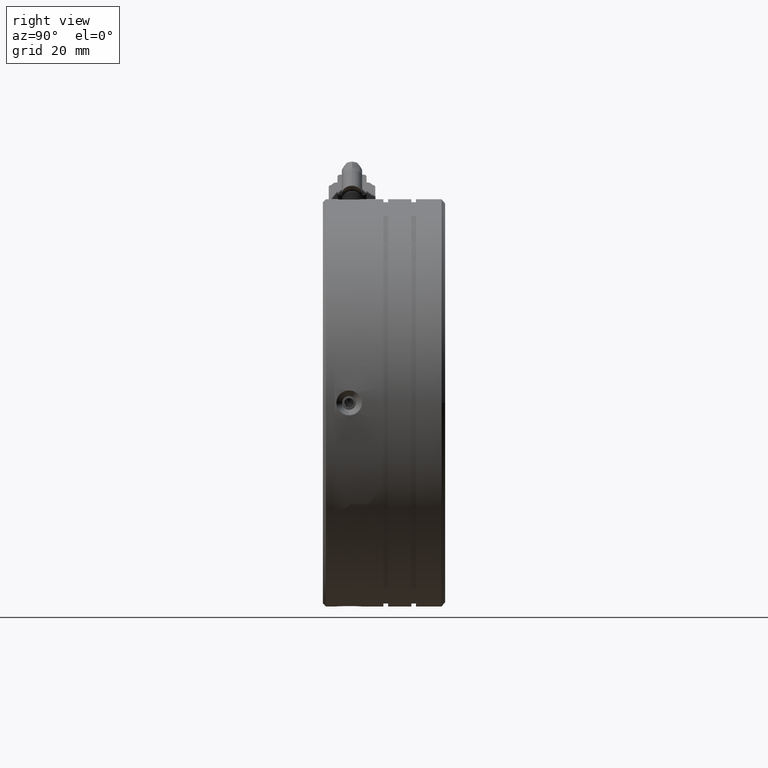
[diagram: clean part render]
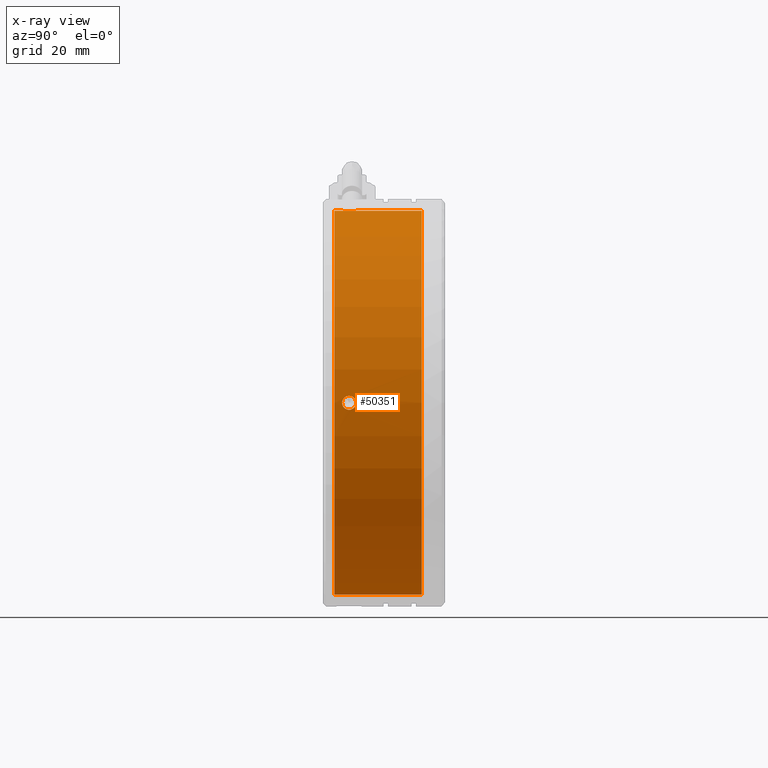
[diagram: x-ray — body ghosted, one internal face saturated and labeled with its STEP entity id]
A machine part, right view, then the same camera in x-ray: the body is ghosted and one INTERNAL B-rep face — a face not visible from any outside direction — is saturated and labeled: STEP entity #50351.
In plain terms, the highlighted cylindrical surface (partial cylindrical patch) has radius 33 mm, axis along (-0, -1, -0).
Its self-contained STEP definition (entity closure, byte-faithful):
#278 = CARTESIAN_POINT ( 'NONE',  ( -1.756641551290327500, 1.544819374656230400, -32.98623554602826900 ) ) ;
#461 = CARTESIAN_POINT ( 'NONE',  ( -1.756641551290326800, 0.06972329556116278700, 32.98623554602826900 ) ) ;
#1137 = CARTESIAN_POINT ( 'NONE',  ( -2.716071020391490200, -0.3927286648912906600, -33.00000000000003600 ) ) ;
#1878 = CARTESIAN_POINT ( 'NONE',  ( 30.27872891275779600, -0.2417390261739501000, 0.6035639478341301400 ) ) ;
#2171 = DIRECTION ( 'NONE',  ( -0.0000000000000000000, -1.000000000000000000, -0.0000000000000000000 ) ) ;
#3342 = CARTESIAN_POINT ( 'NONE',  ( 30.27871735660706800, 1.855908134164973500, 0.6039761071247099500 ) ) ;
#3970 = AXIS2_PLACEMENT_3D ( 'NONE', #52717, #12626, #59439 ) ;
#4981 = CARTESIAN_POINT ( 'NONE',  ( -2.716071020391490200, -1.692728664891304500, -1.131636017531745300E-015 ) ) ;
#6580 = CARTESIAN_POINT ( 'NONE',  ( 30.26210358039565700, 0.8072713351086960900, -1.199999999999881200 ) ) ;
#6642 = VERTEX_POINT ( 'NONE', #54333 ) ;
#7003 = CARTESIAN_POINT ( 'NONE',  ( -2.111577504616403400, 1.855598883251043100, -32.99477845521643400 ) ) ;
#7197 = CARTESIAN_POINT ( 'NONE',  ( -2.111577504616401100, -0.2410562130336494100, 32.99477845521643400 ) ) ;
#8150 = VECTOR ( 'NONE', #2171, 1000.000000000000000 ) ;
#8336 = CARTESIAN_POINT ( 'NONE',  ( -2.716071020391486200, -13.32601881678534500, 33.00000000000003600 ) ) ;
#8619 = CARTESIAN_POINT ( 'NONE',  ( 30.27015327894250500, 0.07004019868969724200, 0.9599873585862803700 ) ) ;
#9026 = CYLINDRICAL_SURFACE ( 'NONE', #71809, 33.00000000000003600 ) ;
#10070 = CARTESIAN_POINT ( 'NONE',  ( 30.28392509849338400, 2.007164604417318400, 0.1573320265077511900 ) ) ;
#10475 = CARTESIAN_POINT ( 'NONE',  ( -2.557591869066220300, 2.007271335108683300, 33.00000000000003600 ) ) ;
#11714 = DIRECTION ( 'NONE',  ( 0.0000000000000000000, 0.0000000000000000000, -1.000000000000000000 ) ) ;
#12626 = DIRECTION ( 'NONE',  ( -0.0000000000000000000, -1.000000000000000000, -0.0000000000000000000 ) ) ;
#13739 = CARTESIAN_POINT ( 'NONE',  ( -2.557592034282572000, 2.007271335108683300, -33.00000000000003600 ) ) ;
#13913 = CARTESIAN_POINT ( 'NONE',  ( -2.557592034282567100, -0.3927286648912909900, 33.00000000000003600 ) ) ;
#14015 = DIRECTION ( 'NONE',  ( 0.0000000000000000000, 0.0000000000000000000, -1.000000000000000000 ) ) ;
#14620 = CIRCLE ( 'NONE', #3970, 33.00000000000003600 ) ;
#15048 = CARTESIAN_POINT ( 'NONE',  ( 30.26327966126859100, 0.4931344724992205400, -1.168785520655095700 ) ) ;
#15347 = CARTESIAN_POINT ( 'NONE',  ( 30.26328206748696200, 0.4928482414054432000, 1.168722034054881400 ) ) ;
#16152 = EDGE_CURVE ( 'NONE', #23322, #78858, #75048, .T. ) ;
#16843 = CARTESIAN_POINT ( 'NONE',  ( 30.28276453478511600, 1.976351361077079500, -0.3129921246374106600 ) ) ;
#17224 = CARTESIAN_POINT ( 'NONE',  ( -2.716071020391490200, -0.3927286648912906600, -33.00000000000003600 ) ) ;
#17271 = CARTESIAN_POINT ( 'NONE',  ( -2.111579069174067700, 1.855750477904867200, 32.99478280426479400 ) ) ;
#18438 = CIRCLE ( 'NONE', #23336, 33.00000000000003600 ) ;
#20422 = CARTESIAN_POINT ( 'NONE',  ( -1.516071020391503300, 0.6487921824051992000, 32.97817460078713500 ) ) ;
#21759 = B_SPLINE_CURVE_WITH_KNOTS ( 'NONE', 3,
 ( #26943, #66990, #80574, #40392, #278, #47089, #7003, #53858, #13739, #60579 ),
 .UNSPECIFIED., .F., .F.,
 ( 4, 2, 2, 2, 4 ),
 ( 0.001874745254870686800, 0.002343432058372861100, 0.002812118861875035500, 0.003280805665377210300, 0.003749492468879384600 ),
 .UNSPECIFIED. ) ;
#21803 = CARTESIAN_POINT ( 'NONE',  ( 30.27017137514495800, 0.06941566001254349800, -0.9592045269286991700 ) ) ;
#22100 = CARTESIAN_POINT ( 'NONE',  ( 30.26210358039565000, 0.8072713351086959800, 1.200000000000092300 ) ) ;
#23239 = CARTESIAN_POINT ( 'NONE',  ( -2.716071020391490200, 2.007271335108682800, -33.00000000000003600 ) ) ;
#23302 = CARTESIAN_POINT ( 'NONE',  ( 30.26327966126859100, 1.121408197718174900, 1.168785520655304800 ) ) ;
#23322 = VERTEX_POINT ( 'NONE', #1137 ) ;
#23336 = AXIS2_PLACEMENT_3D ( 'NONE', #4981, #51839, #11714 ) ;
#23586 = CARTESIAN_POINT ( 'NONE',  ( 30.27591459152081700, 1.768328481776676000, -0.7358360129737872000 ) ) ;
#23945 = CARTESIAN_POINT ( 'NONE',  ( -2.111579069173807400, -0.2412078076873198400, -32.99478280426479400 ) ) ;
#23990 = CARTESIAN_POINT ( 'NONE',  ( -1.757166126515263800, 1.545501260155894400, 32.98625106334230100 ) ) ;
#24142 = EDGE_LOOP ( 'NONE', ( #74201, #75839 ) ) ;
#24857 = VERTEX_POINT ( 'NONE', #27835 ) ;
#24981 = VECTOR ( 'NONE', #55151, 1000.000000000000000 ) ;
#25963 = LINE ( 'NONE', #28547, #8150 ) ;
#26943 = CARTESIAN_POINT ( 'NONE',  ( -1.516071020391503500, 0.8072713351086959800, -32.97817460078714900 ) ) ;
#27222 = CARTESIAN_POINT ( 'NONE',  ( -2.716071020391490200, -13.32601881678534500, -1.131636017531745300E-015 ) ) ;
#27835 = CARTESIAN_POINT ( 'NONE',  ( -1.516071020391503500, 0.8072713351086959800, 32.97817460078714900 ) ) ;
#28251 = CARTESIAN_POINT ( 'NONE',  ( 30.26210358039567400, 0.6487165785571291600, -1.199999999999799700 ) ) ;
#28541 = CARTESIAN_POINT ( 'NONE',  ( 30.27871735660705700, -0.2413654639475856500, -0.6039761071244909000 ) ) ;
#28547 = CARTESIAN_POINT ( 'NONE',  ( -2.716071020391486200, -13.32601881678534500, 33.00000000000003600 ) ) ;
#30105 = VERTEX_POINT ( 'NONE', #23239 ) ;
#30267 = CARTESIAN_POINT ( 'NONE',  ( 30.26733570743430200, 1.412458215402521800, -1.048103961760978000 ) ) ;
#30619 = CARTESIAN_POINT ( 'NONE',  ( -1.757166126515150800, 0.06904141006165227800, -32.98625106334230100 ) ) ;
#30664 = CARTESIAN_POINT ( 'NONE',  ( -1.547920464128700100, 1.123225972586245000, 32.97937260952999600 ) ) ;
#31088 = CARTESIAN_POINT ( 'NONE',  ( -2.716071020391490200, -13.32601881678534500, -33.00000000000003600 ) ) ;
#31329 = EDGE_CURVE ( 'NONE', #78858, #30105, #21759, .T. ) ;
#33413 = EDGE_CURVE ( 'NONE', #63934, #58401, #34047, .T. ) ;
#34047 = B_SPLINE_CURVE_WITH_KNOTS ( 'NONE', 3,
 ( #76875, #70073, #23302, #36718, #83604, #43433, #3342, #50163, #10070, #56887, #16843, #63611, #23586, #70361, #30267, #77167, #37008, #83887 ),
 .UNSPECIFIED., .F., .F.,
 ( 4, 2, 2, 2, 2, 2, 2, 2, 4 ),
 ( 0.0000000000000000000, 0.0004689099025577869600, 0.0009378198051155739300, 0.001406729707673361100, 0.001875639610231148300, 0.002344549512788935900, 0.002813459415346723500, 0.003282369317904511600, 0.003751279220462299200 ),
 .UNSPECIFIED. ) ;
#34257 = VERTEX_POINT ( 'NONE', #72264 ) ;
#35278 = CARTESIAN_POINT ( 'NONE',  ( 30.28392509849339800, -0.3926219341999274100, -0.1573320265075288700 ) ) ;
#35986 = EDGE_CURVE ( 'NONE', #75448, #80652, #42773, .T. ) ;
#36718 = CARTESIAN_POINT ( 'NONE',  ( 30.26732810195379700, 1.412026036177376900, 1.048338358202600500 ) ) ;
#37008 = CARTESIAN_POINT ( 'NONE',  ( 30.26210358039565300, 0.9658260328664218800, -1.199999999999962000 ) ) ;
#37364 = CARTESIAN_POINT ( 'NONE',  ( -1.547920464128685200, 0.4913166976312227700, -32.97937260952999600 ) ) ;
#37406 = CARTESIAN_POINT ( 'NONE',  ( -1.516071020391503500, 0.8072713351086959800, 32.97817460078714900 ) ) ;
#38443 = B_SPLINE_CURVE_WITH_KNOTS ( 'NONE', 3,
 ( #41687, #28251, #15048, #61889, #21803, #68572, #28541, #75388, #35278, #82149, #41980, #1878, #48683, #8619, #55422, #15347, #62182, #22100 ),
 .UNSPECIFIED., .F., .F.,
 ( 4, 2, 2, 2, 2, 2, 2, 2, 4 ),
 ( 0.003751279220462299200, 0.004220189296893438700, 0.004689099373324577400, 0.005158009449755716900, 0.005626919526186855600, 0.006095829602617994200, 0.006564739679049134600, 0.007033649755480273300, 0.007502559831911412800 ),
 .UNSPECIFIED. ) ;
#38654 = CARTESIAN_POINT ( 'NONE',  ( -2.716071020391486200, 13.30727133510869800, 33.00000000000003600 ) ) ;
#40197 = EDGE_CURVE ( 'NONE', #58401, #63934, #38443, .T. ) ;
#40392 = CARTESIAN_POINT ( 'NONE',  ( -1.667591864840333200, 1.411763260888341900, -32.98339454709515900 ) ) ;
#40585 = CARTESIAN_POINT ( 'NONE',  ( -1.667591864840332700, 0.2027794093290507800, 32.98339454709515900 ) ) ;
#41687 = CARTESIAN_POINT ( 'NONE',  ( 30.26210358039565700, 0.8072713351086960900, -1.199999999999881200 ) ) ;
#41980 = CARTESIAN_POINT ( 'NONE',  ( 30.28276453478510900, -0.3618086908596832000, 0.3129921246376338700 ) ) ;
#42044 = ORIENTED_EDGE ( 'NONE', *, *, #35986, .F. ) ;
#42773 = LINE ( 'NONE', #8336, #24981 ) ;
#42871 = CARTESIAN_POINT ( 'NONE',  ( -2.716071020391490200, -13.32601881678534500, -33.00000000000003600 ) ) ;
#43433 = CARTESIAN_POINT ( 'NONE',  ( 30.27586556915116500, 1.766502041763538400, 0.7378216404815718400 ) ) ;
#43606 = VECTOR ( 'NONE', #83020, 1000.000000000000000 ) ;
#44016 = EDGE_LOOP ( 'NONE', ( #52716, #65169, #65672, #74273, #72212, #80606, #61849, #42044, #83769, #73617 ) ) ;
#44073 = CARTESIAN_POINT ( 'NONE',  ( -1.516071020391503500, 0.8072713351086959800, -32.97817460078714900 ) ) ;
#45304 = EDGE_CURVE ( 'NONE', #50813, #59045, #25963, .T. ) ;
#45751 = EDGE_CURVE ( 'NONE', #80652, #6642, #18438, .T. ) ;
#46944 = CARTESIAN_POINT ( 'NONE',  ( -2.716071020391486200, -0.3927286648912906600, 33.00000000000003600 ) ) ;
#47089 = CARTESIAN_POINT ( 'NONE',  ( -1.977841059906341800, 1.766176201225374300, -32.99192714785967700 ) ) ;
#47277 = CARTESIAN_POINT ( 'NONE',  ( -1.977841059906339600, -0.1516335310079813800, 32.99192714785967700 ) ) ;
#48005 = EDGE_CURVE ( 'NONE', #34257, #30105, #66742, .T. ) ;
#48683 = CARTESIAN_POINT ( 'NONE',  ( 30.27591459152080600, -0.1537858115592753700, 0.7358360129740064700 ) ) ;
#50163 = CARTESIAN_POINT ( 'NONE',  ( 30.28273918997904300, 1.975626757688306900, 0.3152330579765894600 ) ) ;
#50351 = ADVANCED_FACE ( 'NONE', ( #50895, #68690 ), #9026, .F. ) ;
#50584 = CARTESIAN_POINT ( 'NONE',  ( -2.716071020391486200, 2.007271335108682800, 33.00000000000003600 ) ) ;
#50813 = VERTEX_POINT ( 'NONE', #38654 ) ;
#50895 = FACE_OUTER_BOUND ( 'NONE', #44016, .T. ) ;
#51839 = DIRECTION ( 'NONE',  ( 0.0000000000000000000, 1.000000000000000000, 0.0000000000000000000 ) ) ;
#52716 = ORIENTED_EDGE ( 'NONE', *, *, #45304, .F. ) ;
#52717 = CARTESIAN_POINT ( 'NONE',  ( -2.716071020391490200, 13.30727133510869800, -1.131636017531745300E-015 ) ) ;
#53858 = CARTESIAN_POINT ( 'NONE',  ( -2.400116378680400100, 1.975421891839071600, -32.99880286288897900 ) ) ;
#54036 = CARTESIAN_POINT ( 'NONE',  ( -2.400116378680397000, -0.3608792216216789000, 32.99880286288897900 ) ) ;
#54091 = VECTOR ( 'NONE', #78591, 1000.000000000000000 ) ;
#54333 = CARTESIAN_POINT ( 'NONE',  ( -2.716071020391490200, -1.692728664891304500, -33.00000000000003600 ) ) ;
#55115 = LINE ( 'NONE', #42871, #43606 ) ;
#55151 = DIRECTION ( 'NONE',  ( -0.0000000000000000000, -1.000000000000000000, -0.0000000000000000000 ) ) ;
#55422 = CARTESIAN_POINT ( 'NONE',  ( 30.26733570743430600, 0.2020844548148637000, 1.048103961761187100 ) ) ;
#56887 = CARTESIAN_POINT ( 'NONE',  ( 30.28393284053778000, 2.007377510687136100, -0.1556996841216925800 ) ) ;
#57248 = CARTESIAN_POINT ( 'NONE',  ( -2.557591869066032400, -0.3927286648912612400, -33.00000000000002800 ) ) ;
#57299 = CARTESIAN_POINT ( 'NONE',  ( -2.402087126540426900, 1.976088320939825000, 32.99882599326977600 ) ) ;
#58401 = VERTEX_POINT ( 'NONE', #6580 ) ;
#59045 = VERTEX_POINT ( 'NONE', #82358 ) ;
#59439 = DIRECTION ( 'NONE',  ( 0.0000000000000000000, 0.0000000000000000000, -1.000000000000000000 ) ) ;
#60470 = CARTESIAN_POINT ( 'NONE',  ( -1.516071020391503500, 0.8072713351086959800, 32.97817460078714900 ) ) ;
#60579 = CARTESIAN_POINT ( 'NONE',  ( -2.716071020391490200, 2.007271335108682800, -33.00000000000003600 ) ) ;
#60761 = CARTESIAN_POINT ( 'NONE',  ( -2.716071020391486200, -0.3927286648912906600, 33.00000000000003600 ) ) ;
#60862 = CARTESIAN_POINT ( 'NONE',  ( 30.26210358039565000, 0.8072713351086959800, 1.200000000000092300 ) ) ;
#61322 = EDGE_CURVE ( 'NONE', #24857, #75448, #68941, .T. ) ;
#61849 = ORIENTED_EDGE ( 'NONE', *, *, #45751, .F. ) ;
#61889 = CARTESIAN_POINT ( 'NONE',  ( 30.26732810195380100, 0.2025166340400023600, -1.048338358202383100 ) ) ;
#62182 = CARTESIAN_POINT ( 'NONE',  ( 30.26210358039565000, 0.6487165197651136900, 1.200000000000092300 ) ) ;
#62497 = CARTESIAN_POINT ( 'NONE',  ( -2.716071020391486200, -1.692728664891304500, 33.00000000000003600 ) ) ;
#63611 = CARTESIAN_POINT ( 'NONE',  ( 30.27872891275779200, 1.856281696391340400, -0.6035639478339234200 ) ) ;
#63934 = VERTEX_POINT ( 'NONE', #60862 ) ;
#63969 = CARTESIAN_POINT ( 'NONE',  ( -2.402087126540059600, -0.3615456507223291400, -32.99882599326976900 ) ) ;
#64019 = CARTESIAN_POINT ( 'NONE',  ( -1.978522949521982300, 1.766700780608278600, 32.99194266260335000 ) ) ;
#65169 = ORIENTED_EDGE ( 'NONE', *, *, #75932, .F. ) ;
#65672 = ORIENTED_EDGE ( 'NONE', *, *, #48005, .T. ) ;
#65719 = EDGE_CURVE ( 'NONE', #59045, #24857, #74008, .T. ) ;
#66742 = LINE ( 'NONE', #31088, #54091 ) ;
#66990 = CARTESIAN_POINT ( 'NONE',  ( -1.516071020391503100, 0.9657504878121914200, -32.97817460078713500 ) ) ;
#67263 = DIRECTION ( 'NONE',  ( -0.0000000000000000000, -1.000000000000000000, -0.0000000000000000000 ) ) ;
#68572 = CARTESIAN_POINT ( 'NONE',  ( 30.27586556915116800, -0.1519593715461540200, -0.7378216404813510200 ) ) ;
#68690 = FACE_BOUND ( 'NONE', #24142, .T. ) ;
#68941 = B_SPLINE_CURVE_WITH_KNOTS ( 'NONE', 3,
 ( #60470, #20422, #80755, #40585, #461, #47277, #7197, #54036, #13913, #60761 ),
 .UNSPECIFIED., .F., .F.,
 ( 4, 2, 2, 2, 4 ),
 ( 0.001874745254870911800, 0.002343432058373084500, 0.002812118861875257100, 0.003280805665377430200, 0.003749492468879603200 ),
 .UNSPECIFIED. ) ;
#70073 = CARTESIAN_POINT ( 'NONE',  ( 30.26210358039565700, 0.9658260916596472800, 1.200000000000092500 ) ) ;
#70361 = CARTESIAN_POINT ( 'NONE',  ( 30.27015327894251600, 1.544502471527683800, -0.9599873585860805300 ) ) ;
#70733 = CARTESIAN_POINT ( 'NONE',  ( -1.978522949521775300, -0.1521581103907211400, -32.99194266260336400 ) ) ;
#70782 = CARTESIAN_POINT ( 'NONE',  ( -1.667743459670267400, 1.411764825952828600, 32.98339889650164700 ) ) ;
#71809 = AXIS2_PLACEMENT_3D ( 'NONE', #27222, #67263, #14015 ) ;
#72212 = ORIENTED_EDGE ( 'NONE', *, *, #16152, .F. ) ;
#72264 = CARTESIAN_POINT ( 'NONE',  ( -2.716071020391490200, 13.30727133510869800, -33.00000000000003600 ) ) ;
#73414 = CARTESIAN_POINT ( 'NONE',  ( -1.516071020391503500, 0.8072713351086959800, -32.97817460078714900 ) ) ;
#73617 = ORIENTED_EDGE ( 'NONE', *, *, #65719, .F. ) ;
#73896 = EDGE_CURVE ( 'NONE', #23322, #6642, #55115, .T. ) ;
#74008 = B_SPLINE_CURVE_WITH_KNOTS ( 'NONE', 3,
 ( #50584, #10475, #57299, #17271, #64019, #23990, #70782, #30664, #77574, #37406 ),
 .UNSPECIFIED., .F., .F.,
 ( 4, 2, 2, 2, 4 ),
 ( 0.0000000000000000000, 0.0004686863137177276400, 0.0009373726274354557100, 0.001406058941153183800, 0.001874745254870911800 ),
 .UNSPECIFIED. ) ;
#74201 = ORIENTED_EDGE ( 'NONE', *, *, #33413, .F. ) ;
#74273 = ORIENTED_EDGE ( 'NONE', *, *, #31329, .F. ) ;
#75048 = B_SPLINE_CURVE_WITH_KNOTS ( 'NONE', 3,
 ( #17224, #57248, #63969, #23945, #70733, #30619, #77523, #37364, #84253, #44073 ),
 .UNSPECIFIED., .F., .F.,
 ( 4, 2, 2, 2, 4 ),
 ( 2.261188303997093400E-016, 0.0004686863137178412600, 0.0009373726274354564700, 0.001406058941153071700, 0.001874745254870686800 ),
 .UNSPECIFIED. ) ;
#75388 = CARTESIAN_POINT ( 'NONE',  ( 30.28273918997905400, -0.3610840874709174100, -0.3152330579763694700 ) ) ;
#75448 = VERTEX_POINT ( 'NONE', #46944 ) ;
#75839 = ORIENTED_EDGE ( 'NONE', *, *, #40197, .F. ) ;
#75932 = EDGE_CURVE ( 'NONE', #34257, #50813, #14620, .T. ) ;
#76875 = CARTESIAN_POINT ( 'NONE',  ( 30.26210358039565000, 0.8072713351086959800, 1.200000000000092300 ) ) ;
#77167 = CARTESIAN_POINT ( 'NONE',  ( 30.26328206748696600, 1.121694428811960100, -1.168722034054665300 ) ) ;
#77523 = CARTESIAN_POINT ( 'NONE',  ( -1.667743459670195400, 0.2027778442646973000, -32.98339889650164700 ) ) ;
#77574 = CARTESIAN_POINT ( 'NONE',  ( -1.516071020391504000, 0.9657503221992012100, 32.97817460078714200 ) ) ;
#78591 = DIRECTION ( 'NONE',  ( -0.0000000000000000000, -1.000000000000000000, -0.0000000000000000000 ) ) ;
#78858 = VERTEX_POINT ( 'NONE', #73414 ) ;
#80574 = CARTESIAN_POINT ( 'NONE',  ( -1.547254035345357200, 1.121255225500734600, -32.97934946666536100 ) ) ;
#80606 = ORIENTED_EDGE ( 'NONE', *, *, #73896, .T. ) ;
#80652 = VERTEX_POINT ( 'NONE', #62497 ) ;
#80755 = CARTESIAN_POINT ( 'NONE',  ( -1.547254035345357200, 0.4932874447166579200, 32.97934946666536100 ) ) ;
#82149 = CARTESIAN_POINT ( 'NONE',  ( 30.28393284053778300, -0.3928348404697431000, 0.1556996841219060500 ) ) ;
#82358 = CARTESIAN_POINT ( 'NONE',  ( -2.716071020391486200, 2.007271335108682800, 33.00000000000003600 ) ) ;
#83020 = DIRECTION ( 'NONE',  ( -0.0000000000000000000, -1.000000000000000000, -0.0000000000000000000 ) ) ;
#83604 = CARTESIAN_POINT ( 'NONE',  ( 30.27017137514495800, 1.545127010204846200, 0.9592045269289118900 ) ) ;
#83769 = ORIENTED_EDGE ( 'NONE', *, *, #61322, .F. ) ;
#83887 = CARTESIAN_POINT ( 'NONE',  ( 30.26210358039565700, 0.8072713351086960900, -1.199999999999881200 ) ) ;
#84253 = CARTESIAN_POINT ( 'NONE',  ( -1.516071020391504000, 0.6487923480182277200, -32.97817460078713500 ) ) ;